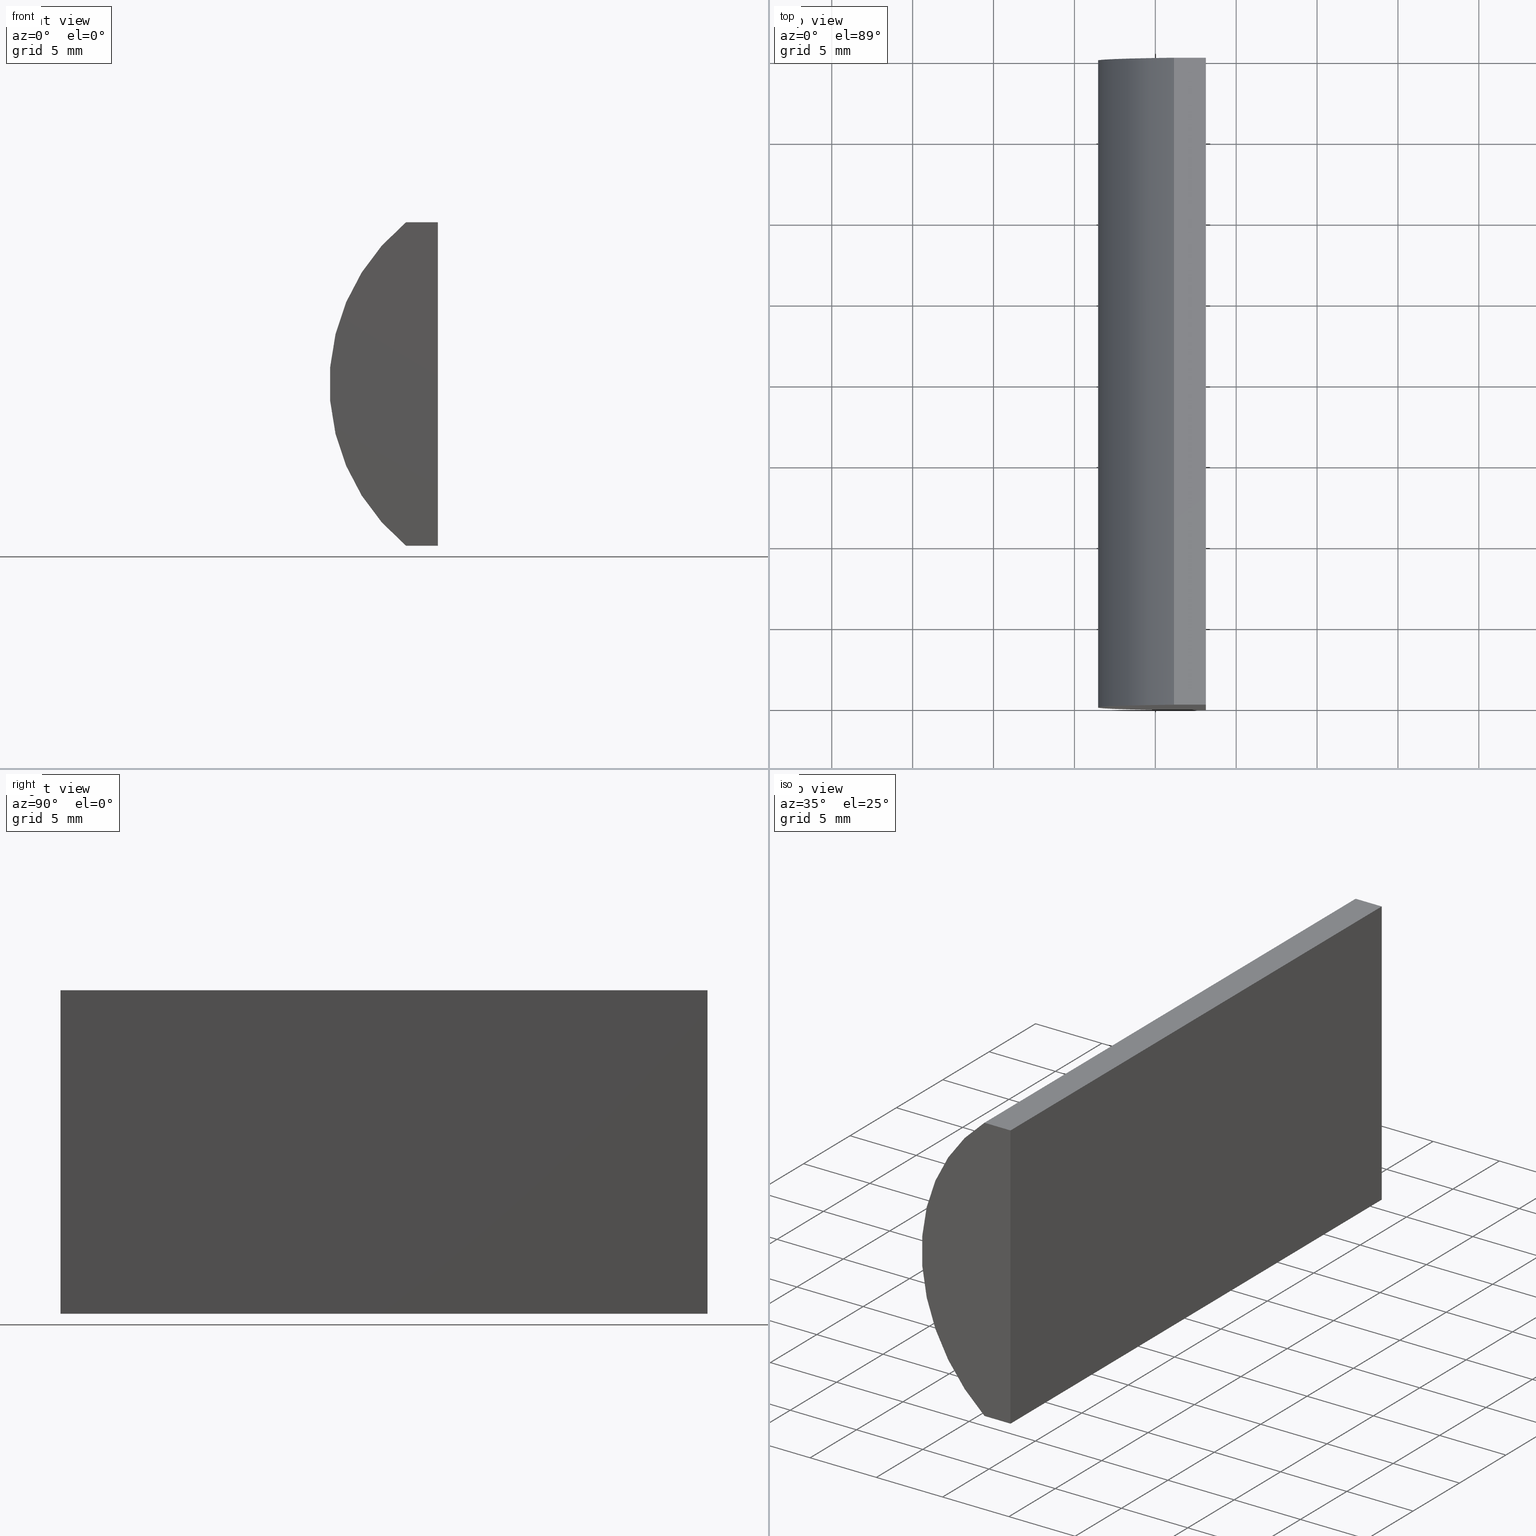
[diagram: canonical four-view strip — front | top / right | iso, engineering-drawing reading convention]
A machine part, canonical four-view strip (front | top / right | iso — engineering-drawing reading convention). The complete STEP part file that produces these views, byte-faithful:
ISO-10303-21;
HEADER;
FILE_DESCRIPTION (( 'STEP AP214' ),
    '1' );
FILE_NAME ('155044.STEP',
    '2019-06-18T03:11:36',
    ( 'user' ),
    ( '΢���й�' ),
    'SwSTEP 2.0',
    'SolidWorks 2016',
    '' );
FILE_SCHEMA (( 'AUTOMOTIVE_DESIGN' ));
ENDSEC;

DATA;
#1 = EDGE_CURVE ( 'NONE', #109, #119, #96, .T. ) ;
#2 = CARTESIAN_POINT ( 'NONE',  ( -1.874795665148728500, 0.0000000000000000000, 10.00000000000000000 ) ) ;
#3 = SURFACE_STYLE_FILL_AREA ( #59 ) ;
#4 = EDGE_CURVE ( 'NONE', #11, #109, #45, .T. ) ;
#5 = FACE_OUTER_BOUND ( 'NONE', #76, .T. ) ;
#6 = EDGE_CURVE ( 'NONE', #11, #108, #195, .T. ) ;
#7 = APPLICATION_PROTOCOL_DEFINITION ( 'draft international standard', 'automotive_design', 1998, #121 ) ;
#8 = VERTEX_POINT ( 'NONE', #104 ) ;
#9 = DIRECTION ( 'NONE',  ( 3.035766082959411900E-016, 0.0000000000000000000, 1.000000000000000000 ) ) ;
#10 = DIRECTION ( 'NONE',  ( 0.0000000000000000000, 0.0000000000000000000, 1.000000000000000000 ) ) ;
#11 = VERTEX_POINT ( 'NONE', #151 ) ;
#12 = DIRECTION ( 'NONE',  ( -0.0000000000000000000, -1.000000000000000000, -0.0000000000000000000 ) ) ;
#13 =( LENGTH_UNIT ( ) NAMED_UNIT ( * ) SI_UNIT ( .MILLI., .METRE. ) );
#14 = CARTESIAN_POINT ( 'NONE',  ( -3.841435220478750500, 40.00000000000000000, 10.00000000000000000 ) ) ;
#15 = ADVANCED_FACE ( 'NONE', ( #156 ), #142, .F. ) ;
#16 = ADVANCED_FACE ( 'NONE', ( #83 ), #180, .F. ) ;
#17 = VECTOR ( 'NONE', #89, 1000.000000000000000 ) ;
#18 = PRESENTATION_STYLE_ASSIGNMENT (( #124 ) ) ;
#19 = VECTOR ( 'NONE', #87, 1000.000000000000000 ) ;
#20 = ORIENTED_EDGE ( 'NONE', *, *, #35, .F. ) ;
#21 = FILL_AREA_STYLE_COLOUR ( '', #90 ) ;
#22 = CARTESIAN_POINT ( 'NONE',  ( -3.841435220478750500, 40.00000000000000000, -10.00000000000000000 ) ) ;
#23 = VECTOR ( 'NONE', #12, 1000.000000000000000 ) ;
#24 = ORIENTED_EDGE ( 'NONE', *, *, #31, .T. ) ;
#25 = ORIENTED_EDGE ( 'NONE', *, *, #4, .F. ) ;
#26 = ORIENTED_EDGE ( 'NONE', *, *, #32, .T. ) ;
#27 = PRODUCT ( '155044', '155044', '', ( #44 ) ) ;
#28 =( GEOMETRIC_REPRESENTATION_CONTEXT ( 3 ) GLOBAL_UNCERTAINTY_ASSIGNED_CONTEXT ( ( #178 ) ) GLOBAL_UNIT_ASSIGNED_CONTEXT ( ( #13, #189, #170 ) ) REPRESENTATION_CONTEXT ( 'NONE', 'WORKASPACE' ) );
#29 = ORIENTED_EDGE ( 'NONE', *, *, #36, .F. ) ;
#30 = VERTEX_POINT ( 'NONE', #120 ) ;
#31 = EDGE_CURVE ( 'NONE', #109, #204, #52, .T. ) ;
#32 = EDGE_CURVE ( 'NONE', #108, #204, #158, .T. ) ;
#33 = ORIENTED_EDGE ( 'NONE', *, *, #111, .F. ) ;
#34 = ORIENTED_EDGE ( 'NONE', *, *, #38, .T. ) ;
#35 = EDGE_CURVE ( 'NONE', #119, #8, #203, .T. ) ;
#36 = EDGE_CURVE ( 'NONE', #8, #185, #122, .T. ) ;
#37 = CARTESIAN_POINT ( 'NONE',  ( -1.874795665148728500, 40.00000000000000000, 10.00000000000000000 ) ) ;
#38 = EDGE_CURVE ( 'NONE', #30, #11, #64, .T. ) ;
#39 = DIRECTION ( 'NONE',  ( -0.0000000000000000000, -1.000000000000000000, -0.0000000000000000000 ) ) ;
#40 = FILL_AREA_STYLE_COLOUR ( '', #115 ) ;
#41 =( GEOMETRIC_REPRESENTATION_CONTEXT ( 3 ) GLOBAL_UNCERTAINTY_ASSIGNED_CONTEXT ( ( #136 ) ) GLOBAL_UNIT_ASSIGNED_CONTEXT ( ( #113, #53, #168 ) ) REPRESENTATION_CONTEXT ( 'NONE', 'WORKASPACE' ) );
#42 = CARTESIAN_POINT ( 'NONE',  ( -1.874795665148734500, 40.00000000000000000, -10.00000000000000400 ) ) ;
#43 = CARTESIAN_POINT ( 'NONE',  ( -3.841435220478750500, 40.00000000000000000, 10.00000000000000000 ) ) ;
#44 = PRODUCT_CONTEXT ( 'NONE', #71, 'mechanical' ) ;
#45 = LINE ( 'NONE', #42, #146 ) ;
#46 = DIRECTION ( 'NONE',  ( 0.0000000000000000000, 1.000000000000000000, 0.0000000000000000000 ) ) ;
#47 = VECTOR ( 'NONE', #177, 1000.000000000000000 ) ;
#48 = ORIENTED_EDGE ( 'NONE', *, *, #86, .T. ) ;
#49 = DIRECTION ( 'NONE',  ( 0.0000000000000000000, 0.0000000000000000000, -1.000000000000000000 ) ) ;
#50 = SHAPE_DEFINITION_REPRESENTATION ( #67, #190 ) ;
#51 = MECHANICAL_DESIGN_GEOMETRIC_PRESENTATION_REPRESENTATION (  '', ( #93 ), #41 ) ;
#52 = LINE ( 'NONE', #154, #199 ) ;
#53 =( NAMED_UNIT ( * ) PLANE_ANGLE_UNIT ( ) SI_UNIT ( $, .RADIAN. ) );
#54 = EDGE_LOOP ( 'NONE', ( #29, #81, #70, #135 ) ) ;
#55 = DIRECTION ( 'NONE',  ( 0.0000000000000000000, 0.0000000000000000000, 1.000000000000000000 ) ) ;
#56 = ORIENTED_EDGE ( 'NONE', *, *, #1, .F. ) ;
#57 = ORIENTED_EDGE ( 'NONE', *, *, #38, .F. ) ;
#58 = DIRECTION ( 'NONE',  ( -0.0000000000000000000, -1.000000000000000000, -0.0000000000000000000 ) ) ;
#59 = FILL_AREA_STYLE ('',( #40 ) ) ;
#60 = CARTESIAN_POINT ( 'NONE',  ( -3.841435220478750500, 0.0000000000000000000, -10.00000000000000000 ) ) ;
#61 = FACE_OUTER_BOUND ( 'NONE', #54, .T. ) ;
#62 = PRODUCT_DEFINITION ( 'δ֪', '', #137, #176 ) ;
#63 = CARTESIAN_POINT ( 'NONE',  ( -3.841435220478750500, 40.00000000000000000, -10.00000000000000000 ) ) ;
#64 = LINE ( 'NONE', #43, #17 ) ;
#65 = EDGE_LOOP ( 'NONE', ( #26, #105, #25, #183 ) ) ;
#66 = ORIENTED_EDGE ( 'NONE', *, *, #35, .T. ) ;
#67 = PRODUCT_DEFINITION_SHAPE ( 'NONE', 'NONE',  #62 ) ;
#68 = APPLICATION_PROTOCOL_DEFINITION ( 'draft international standard', 'automotive_design', 1998, #71 ) ;
#69 = ORIENTED_EDGE ( 'NONE', *, *, #1, .T. ) ;
#70 = ORIENTED_EDGE ( 'NONE', *, *, #32, .F. ) ;
#71 = APPLICATION_CONTEXT ( 'automotive_design' ) ;
#72 = ORIENTED_EDGE ( 'NONE', *, *, #36, .T. ) ;
#73 = ORIENTED_EDGE ( 'NONE', *, *, #111, .T. ) ;
#74 = AXIS2_PLACEMENT_3D ( 'NONE', #123, #141, #149 ) ;
#75 = PRODUCT_RELATED_PRODUCT_CATEGORY ( 'part', '', ( #27 ) ) ;
#76 = EDGE_LOOP ( 'NONE', ( #73, #34, #200, #69 ) ) ;
#77 = DIRECTION ( 'NONE',  ( -1.000000000000000000, 0.0000000000000000000, -0.0000000000000000000 ) ) ;
#78 = DIRECTION ( 'NONE',  ( -1.000000000000000000, -0.0000000000000000000, 1.764149888346681200E-015 ) ) ;
#79 = DIRECTION ( 'NONE',  ( 0.0000000000000000000, -0.0000000000000000000, 1.000000000000000000 ) ) ;
#80 = AXIS2_PLACEMENT_3D ( 'NONE', #140, #161, #153 ) ;
#81 = ORIENTED_EDGE ( 'NONE', *, *, #186, .F. ) ;
#82 = EDGE_LOOP ( 'NONE', ( #129, #20, #56, #24 ) ) ;
#83 = FACE_OUTER_BOUND ( 'NONE', #82, .T. ) ;
#84 =( NAMED_UNIT ( * ) SI_UNIT ( $, .STERADIAN. ) SOLID_ANGLE_UNIT ( ) );
#85 = FACE_OUTER_BOUND ( 'NONE', #201, .T. ) ;
#86 = EDGE_CURVE ( 'NONE', #30, #185, #145, .T. ) ;
#87 = DIRECTION ( 'NONE',  ( 1.000000000000000000, 0.0000000000000000000, 0.0000000000000000000 ) ) ;
#88 = VECTOR ( 'NONE', #173, 1000.000000000000000 ) ;
#89 = DIRECTION ( 'NONE',  ( 1.000000000000000000, 0.0000000000000000000, 0.0000000000000000000 ) ) ;
#90 = COLOUR_RGB ( '',1.000000000000000000, 1.000000000000000000, 1.000000000000000000 ) ;
#91 = ADVANCED_FACE ( 'NONE', ( #132 ), #138, .F. ) ;
#92 = MANIFOLD_SOLID_BREP ( '͹̨-����1', #101 ) ;
#93 = STYLED_ITEM ( 'NONE', ( #18 ), #190 ) ;
#94 = VECTOR ( 'NONE', #39, 1000.000000000000000 ) ;
#95 = PRESENTATION_LAYER_ASSIGNMENT (  '', '', ( #114 ) ) ;
#96 = LINE ( 'NONE', #63, #100 ) ;
#97 = SURFACE_STYLE_USAGE ( .BOTH. , #117 ) ;
#98 = DIRECTION ( 'NONE',  ( 0.0000000000000000000, 1.000000000000000000, 0.0000000000000000000 ) ) ;
#99 = CARTESIAN_POINT ( 'NONE',  ( 4.355204334851265500, 40.00000000000000000, 4.286263797015675000E-017 ) ) ;
#100 = VECTOR ( 'NONE', #78, 1000.000000000000000 ) ;
#101 = CLOSED_SHELL ( 'NONE', ( #125, #15, #91, #16, #167, #182 ) ) ;
#102 = CARTESIAN_POINT ( 'NONE',  ( -1.874795665148734500, 40.00000000000000000, -10.00000000000000400 ) ) ;
#103 = DIRECTION ( 'NONE',  ( 0.0000000000000000000, 0.0000000000000000000, -1.000000000000000000 ) ) ;
#104 = CARTESIAN_POINT ( 'NONE',  ( -3.841435220478750500, 0.0000000000000000000, -10.00000000000000000 ) ) ;
#105 = ORIENTED_EDGE ( 'NONE', *, *, #31, .F. ) ;
#106 = CARTESIAN_POINT ( 'NONE',  ( 4.355204334851265500, 40.00000000000000000, 4.286263797015675000E-017 ) ) ;
#107 = SURFACE_SIDE_STYLE ('',( #130 ) ) ;
#108 = VERTEX_POINT ( 'NONE', #2 ) ;
#109 = VERTEX_POINT ( 'NONE', #162 ) ;
#110 = DIRECTION ( 'NONE',  ( 0.0000000000000000000, 1.000000000000000000, 0.0000000000000000000 ) ) ;
#111 = EDGE_CURVE ( 'NONE', #119, #30, #171, .T. ) ;
#112 = AXIS2_PLACEMENT_3D ( 'NONE', #179, #46, #184 ) ;
#113 =( LENGTH_UNIT ( ) NAMED_UNIT ( * ) SI_UNIT ( .MILLI., .METRE. ) );
#114 = STYLED_ITEM ( 'NONE', ( #169 ), #92 ) ;
#115 = COLOUR_RGB ( '',1.000000000000000000, 1.000000000000000000, 1.000000000000000000 ) ;
#116 = EDGE_LOOP ( 'NONE', ( #126, #139, #57, #48 ) ) ;
#117 = SURFACE_SIDE_STYLE ('',( #3 ) ) ;
#118 = LINE ( 'NONE', #128, #19 ) ;
#119 = VERTEX_POINT ( 'NONE', #202 ) ;
#120 = CARTESIAN_POINT ( 'NONE',  ( -3.841435220478750500, 40.00000000000000000, 10.00000000000000000 ) ) ;
#121 = APPLICATION_CONTEXT ( 'automotive_design' ) ;
#122 = CIRCLE ( 'NONE', #80, 12.93000000000002500 ) ;
#123 = CARTESIAN_POINT ( 'NONE',  ( -3.841435220478750500, 40.00000000000000000, -10.00000000000000000 ) ) ;
#124 = SURFACE_STYLE_USAGE ( .BOTH. , #107 ) ;
#125 = ADVANCED_FACE ( 'NONE', ( #85 ), #174, .T. ) ;
#126 = ORIENTED_EDGE ( 'NONE', *, *, #127, .T. ) ;
#127 = EDGE_CURVE ( 'NONE', #185, #108, #118, .T. ) ;
#128 = CARTESIAN_POINT ( 'NONE',  ( -3.841435220478750500, 0.0000000000000000000, 10.00000000000000000 ) ) ;
#129 = ORIENTED_EDGE ( 'NONE', *, *, #186, .T. ) ;
#130 = SURFACE_STYLE_FILL_AREA ( #191 ) ;
#131 = AXIS2_PLACEMENT_3D ( 'NONE', #102, #196, #9 ) ;
#132 = FACE_OUTER_BOUND ( 'NONE', #65, .T. ) ;
#133 = CARTESIAN_POINT ( 'NONE',  ( 4.355204334851265500, 0.0000000000000000000, 4.286263797015675000E-017 ) ) ;
#134 = VECTOR ( 'NONE', #198, 1000.000000000000000 ) ;
#135 = ORIENTED_EDGE ( 'NONE', *, *, #127, .F. ) ;
#136 = UNCERTAINTY_MEASURE_WITH_UNIT (LENGTH_MEASURE( 1.000000000000000100E-005 ), #113, 'distance_accuracy_value', 'NONE');
#137 = PRODUCT_DEFINITION_FORMATION_WITH_SPECIFIED_SOURCE ( '�κ�', '', #27, .NOT_KNOWN. ) ;
#138 = PLANE ( 'NONE',  #131 ) ;
#139 = ORIENTED_EDGE ( 'NONE', *, *, #6, .F. ) ;
#140 = CARTESIAN_POINT ( 'NONE',  ( 4.355204334851265500, 0.0000000000000000000, 4.286263797015675000E-017 ) ) ;
#141 = DIRECTION ( 'NONE',  ( 1.764149888346681400E-015, -0.0000000000000000000, 1.000000000000000000 ) ) ;
#142 = PLANE ( 'NONE',  #181 ) ;
#143 = CARTESIAN_POINT ( 'NONE',  ( -3.841435220478750500, 0.0000000000000000000, 10.00000000000000000 ) ) ;
#144 = AXIS2_PLACEMENT_3D ( 'NONE', #133, #110, #79 ) ;
#145 = LINE ( 'NONE', #14, #94 ) ;
#146 = VECTOR ( 'NONE', #147, 1000.000000000000000 ) ;
#147 = DIRECTION ( 'NONE',  ( -3.035766082959411900E-016, -0.0000000000000000000, -1.000000000000000000 ) ) ;
#148 = DIRECTION ( 'NONE',  ( 1.000000000000000000, 0.0000000000000000000, 0.0000000000000000000 ) ) ;
#149 = DIRECTION ( 'NONE',  ( 1.000000000000000000, 0.0000000000000000000, -1.764149888346681400E-015 ) ) ;
#150 = CARTESIAN_POINT ( 'NONE',  ( -3.841435220478750500, 40.00000000000000000, 10.00000000000000000 ) ) ;
#151 = CARTESIAN_POINT ( 'NONE',  ( -1.874795665148728500, 40.00000000000000000, 10.00000000000000000 ) ) ;
#152 = DIRECTION ( 'NONE',  ( -0.0000000000000000000, -1.000000000000000000, -0.0000000000000000000 ) ) ;
#153 = DIRECTION ( 'NONE',  ( 0.0000000000000000000, 0.0000000000000000000, 1.000000000000000000 ) ) ;
#154 = CARTESIAN_POINT ( 'NONE',  ( -1.874795665148734500, 40.00000000000000000, -10.00000000000000400 ) ) ;
#155 = AXIS2_PLACEMENT_3D ( 'NONE', #106, #152, #49 ) ;
#156 = FACE_OUTER_BOUND ( 'NONE', #116, .T. ) ;
#157 = PLANE ( 'NONE',  #112 ) ;
#158 = LINE ( 'NONE', #166, #134 ) ;
#159 = CARTESIAN_POINT ( 'NONE',  ( -1.874795665148734500, 0.0000000000000000000, -10.00000000000000400 ) ) ;
#160 =( GEOMETRIC_REPRESENTATION_CONTEXT ( 3 ) GLOBAL_UNCERTAINTY_ASSIGNED_CONTEXT ( ( #165 ) ) GLOBAL_UNIT_ASSIGNED_CONTEXT ( ( #175, #187, #84 ) ) REPRESENTATION_CONTEXT ( 'NONE', 'WORKASPACE' ) );
#161 = DIRECTION ( 'NONE',  ( 0.0000000000000000000, 1.000000000000000000, 0.0000000000000000000 ) ) ;
#162 = CARTESIAN_POINT ( 'NONE',  ( -1.874795665148734500, 40.00000000000000000, -10.00000000000000400 ) ) ;
#163 = CARTESIAN_POINT ( 'NONE',  ( 0.0000000000000000000, 0.0000000000000000000, 0.0000000000000000000 ) ) ;
#164 = MECHANICAL_DESIGN_GEOMETRIC_PRESENTATION_REPRESENTATION (  '', ( #114 ), #160 ) ;
#165 = UNCERTAINTY_MEASURE_WITH_UNIT (LENGTH_MEASURE( 1.000000000000000100E-005 ), #175, 'distance_accuracy_value', 'NONE');
#166 = CARTESIAN_POINT ( 'NONE',  ( -1.874795665148734500, 0.0000000000000000000, -10.00000000000000400 ) ) ;
#167 = ADVANCED_FACE ( 'NONE', ( #5 ), #157, .T. ) ;
#168 =( NAMED_UNIT ( * ) SI_UNIT ( $, .STERADIAN. ) SOLID_ANGLE_UNIT ( ) );
#169 = PRESENTATION_STYLE_ASSIGNMENT (( #97 ) ) ;
#170 =( NAMED_UNIT ( * ) SI_UNIT ( $, .STERADIAN. ) SOLID_ANGLE_UNIT ( ) );
#171 = CIRCLE ( 'NONE', #193, 12.93000000000002500 ) ;
#172 = PRESENTATION_LAYER_ASSIGNMENT (  '', '', ( #93 ) ) ;
#173 = DIRECTION ( 'NONE',  ( -1.000000000000000000, -0.0000000000000000000, 1.764149888346681200E-015 ) ) ;
#174 = CYLINDRICAL_SURFACE ( 'NONE', #155, 12.93000000000002500 ) ;
#175 =( LENGTH_UNIT ( ) NAMED_UNIT ( * ) SI_UNIT ( .MILLI., .METRE. ) );
#176 = PRODUCT_DEFINITION_CONTEXT ( 'detailed design', #121, 'design' ) ;
#177 = DIRECTION ( 'NONE',  ( -0.0000000000000000000, -1.000000000000000000, -0.0000000000000000000 ) ) ;
#178 = UNCERTAINTY_MEASURE_WITH_UNIT (LENGTH_MEASURE( 1.000000000000000100E-005 ), #13, 'distance_accuracy_value', 'NONE');
#179 = CARTESIAN_POINT ( 'NONE',  ( 4.355204334851265500, 40.00000000000000000, 4.286263797015675000E-017 ) ) ;
#180 = PLANE ( 'NONE',  #74 ) ;
#181 = AXIS2_PLACEMENT_3D ( 'NONE', #150, #103, #77 ) ;
#182 = ADVANCED_FACE ( 'NONE', ( #61 ), #192, .F. ) ;
#183 = ORIENTED_EDGE ( 'NONE', *, *, #6, .T. ) ;
#184 = DIRECTION ( 'NONE',  ( 0.0000000000000000000, -0.0000000000000000000, 1.000000000000000000 ) ) ;
#185 = VERTEX_POINT ( 'NONE', #143 ) ;
#186 = EDGE_CURVE ( 'NONE', #204, #8, #188, .T. ) ;
#187 =( NAMED_UNIT ( * ) PLANE_ANGLE_UNIT ( ) SI_UNIT ( $, .RADIAN. ) );
#188 = LINE ( 'NONE', #60, #88 ) ;
#189 =( NAMED_UNIT ( * ) PLANE_ANGLE_UNIT ( ) SI_UNIT ( $, .RADIAN. ) );
#190 = ADVANCED_BREP_SHAPE_REPRESENTATION ( '155044', ( #92, #194 ), #28 ) ;
#191 = FILL_AREA_STYLE ('',( #21 ) ) ;
#192 = PLANE ( 'NONE',  #144 ) ;
#193 = AXIS2_PLACEMENT_3D ( 'NONE', #99, #98, #55 ) ;
#194 = AXIS2_PLACEMENT_3D ( 'NONE', #163, #10, #148 ) ;
#195 = LINE ( 'NONE', #37, #47 ) ;
#196 = DIRECTION ( 'NONE',  ( -1.000000000000000000, 0.0000000000000000000, 3.035766082959411900E-016 ) ) ;
#197 = ORIENTED_EDGE ( 'NONE', *, *, #86, .F. ) ;
#198 = DIRECTION ( 'NONE',  ( -3.035766082959411900E-016, -0.0000000000000000000, -1.000000000000000000 ) ) ;
#199 = VECTOR ( 'NONE', #58, 1000.000000000000000 ) ;
#200 = ORIENTED_EDGE ( 'NONE', *, *, #4, .T. ) ;
#201 = EDGE_LOOP ( 'NONE', ( #72, #197, #33, #66 ) ) ;
#202 = CARTESIAN_POINT ( 'NONE',  ( -3.841435220478750500, 40.00000000000000000, -10.00000000000000000 ) ) ;
#203 = LINE ( 'NONE', #22, #23 ) ;
#204 = VERTEX_POINT ( 'NONE', #159 ) ;
ENDSEC;
END-ISO-10303-21;
